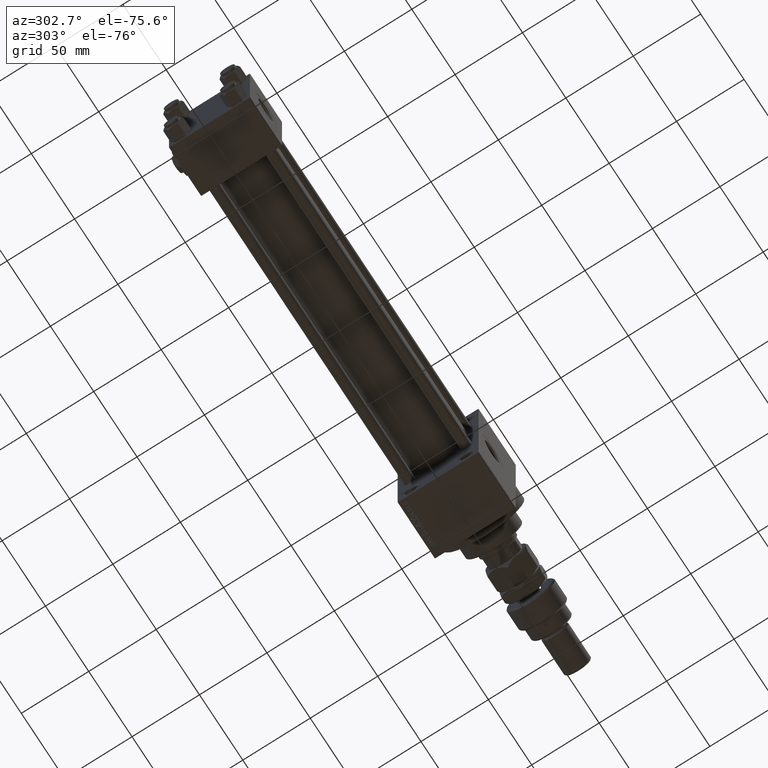
[diagram: clean part render]
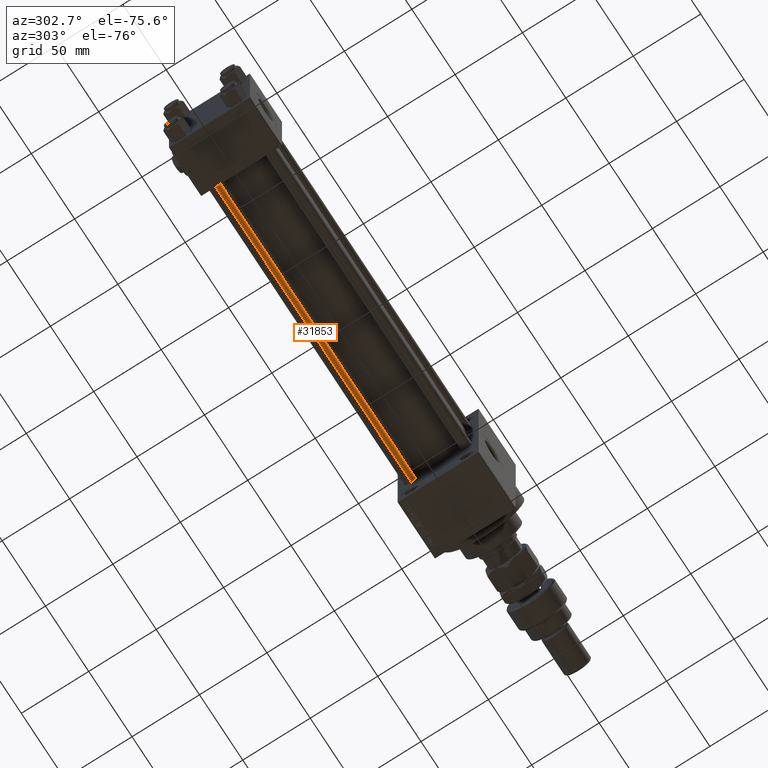
[diagram: same view with one face highlighted and labeled with its STEP entity id]
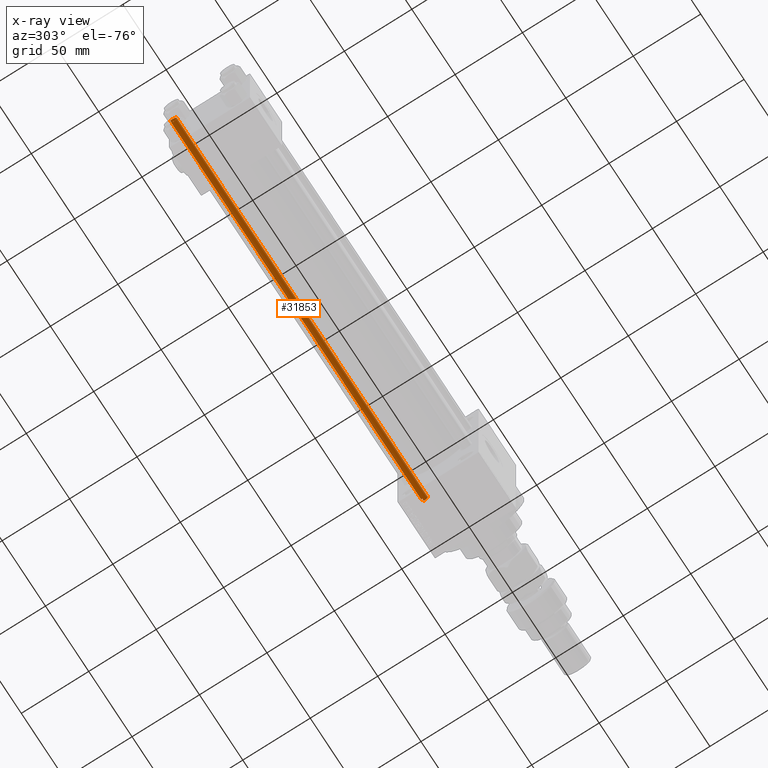
[diagram: x-ray of the same camera — body ghosted, the highlighted face saturated]
A machine part, auxiliary view. The second image highlights one B-rep face of the part: STEP entity #31853.
The next image is the same camera in x-ray: the body ghosted, the highlighted face saturated — about 0% of this face is hidden behind the body in this view.
In plain terms, the highlighted cylindrical surface (edge-blend (fillet) strip) has radius 4 mm, axis along (1, -0, 0).
Its self-contained STEP definition (entity closure, byte-faithful):
#2759 = CARTESIAN_POINT ( 'NONE',  ( -4.000000000000000000, 0.000000000000000000, 291.0000000000000000 ) ) ;
#2951 = DIRECTION ( 'NONE',  ( -1.000000000000000000, 0.000000000000000000, 0.000000000000000000 ) ) ;
#5008 = ORIENTED_EDGE ( 'NONE', *, *, #33186, .T. ) ;
#6789 = EDGE_CURVE ( 'NONE', #36431, #42416, #36420, .T. ) ;
#10588 = FACE_OUTER_BOUND ( 'NONE', #19961, .T. ) ;
#11181 = LINE ( 'NONE', #2759, #19315 ) ;
#14183 = EDGE_CURVE ( 'NONE', #44750, #23287, #11181, .T. ) ;
#15136 = AXIS2_PLACEMENT_3D ( 'NONE', #21866, #21365, #37449 ) ;
#15359 = CARTESIAN_POINT ( 'NONE',  ( 4.000000000000000000, 4.898587196589412829E-16, 0.5000000000000559552 ) ) ;
#17653 = CIRCLE ( 'NONE', #15136, 4.000000000000000000 ) ;
#19315 = VECTOR ( 'NONE', #43071, 1000.000000000000000 ) ;
#19961 = EDGE_LOOP ( 'NONE', ( #45305, #5008, #47678, #26819 ) ) ;
#20053 = CARTESIAN_POINT ( 'NONE',  ( 4.000000000000000000, 4.898587196589412829E-16, 290.4999999999999432 ) ) ;
#20086 = DIRECTION ( 'NONE',  ( -0.000000000000000000, -0.000000000000000000, -1.000000000000000000 ) ) ;
#20848 = DIRECTION ( 'NONE',  ( 1.000000000000000000, 0.000000000000000000, 0.000000000000000000 ) ) ;
#21112 = CARTESIAN_POINT ( 'NONE',  ( 0.000000000000000000, 0.000000000000000000, 0.5000000000000559552 ) ) ;
#21365 = DIRECTION ( 'NONE',  ( 0.000000000000000000, 0.000000000000000000, -1.000000000000000000 ) ) ;
#21866 = CARTESIAN_POINT ( 'NONE',  ( 0.000000000000000000, 0.000000000000000000, 290.4999999999999432 ) ) ;
#22505 = CARTESIAN_POINT ( 'NONE',  ( -4.000000000000000000, 0.000000000000000000, 0.5000000000000559552 ) ) ;
#23287 = VERTEX_POINT ( 'NONE', #22505 ) ;
#24536 = DIRECTION ( 'NONE',  ( -0.000000000000000000, -0.000000000000000000, 1.000000000000000000 ) ) ;
#24959 = VECTOR ( 'NONE', #20086, 1000.000000000000000 ) ;
#26411 = DIRECTION ( 'NONE',  ( -0.000000000000000000, -0.000000000000000000, -1.000000000000000000 ) ) ;
#26819 = ORIENTED_EDGE ( 'NONE', *, *, #50252, .T. ) ;
#27762 = CARTESIAN_POINT ( 'NONE',  ( 4.000000000000000000, 4.898587196589412829E-16, 291.0000000000000000 ) ) ;
#30091 = AXIS2_PLACEMENT_3D ( 'NONE', #21112, #24536, #20848 ) ;
#31067 = AXIS2_PLACEMENT_3D ( 'NONE', #42221, #26411, #2951 ) ;
#31853 = ADVANCED_FACE ( 'NONE', ( #10588 ), #46173, .T. ) ;
#33186 = EDGE_CURVE ( 'NONE', #36431, #44750, #17653, .T. ) ;
#36420 = LINE ( 'NONE', #27762, #24959 ) ;
#36431 = VERTEX_POINT ( 'NONE', #20053 ) ;
#37449 = DIRECTION ( 'NONE',  ( 1.000000000000000000, 0.000000000000000000, 0.000000000000000000 ) ) ;
#37606 = CARTESIAN_POINT ( 'NONE',  ( -4.000000000000000000, 0.000000000000000000, 290.4999999999999432 ) ) ;
#42221 = CARTESIAN_POINT ( 'NONE',  ( 0.000000000000000000, 0.000000000000000000, 291.0000000000000000 ) ) ;
#42416 = VERTEX_POINT ( 'NONE', #15359 ) ;
#43071 = DIRECTION ( 'NONE',  ( -0.000000000000000000, -0.000000000000000000, -1.000000000000000000 ) ) ;
#44750 = VERTEX_POINT ( 'NONE', #37606 ) ;
#45305 = ORIENTED_EDGE ( 'NONE', *, *, #6789, .F. ) ;
#46072 = CIRCLE ( 'NONE', #30091, 4.000000000000000000 ) ;
#46173 = CYLINDRICAL_SURFACE ( 'NONE', #31067, 4.000000000000000000 ) ;
#47678 = ORIENTED_EDGE ( 'NONE', *, *, #14183, .T. ) ;
#50252 = EDGE_CURVE ( 'NONE', #23287, #42416, #46072, .T. ) ;